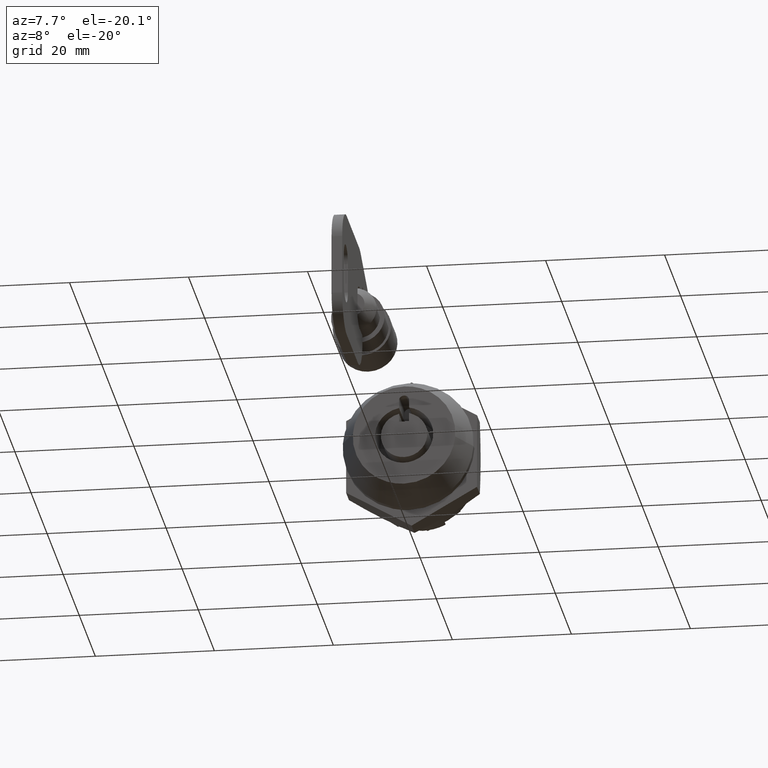
[diagram: clean part render]
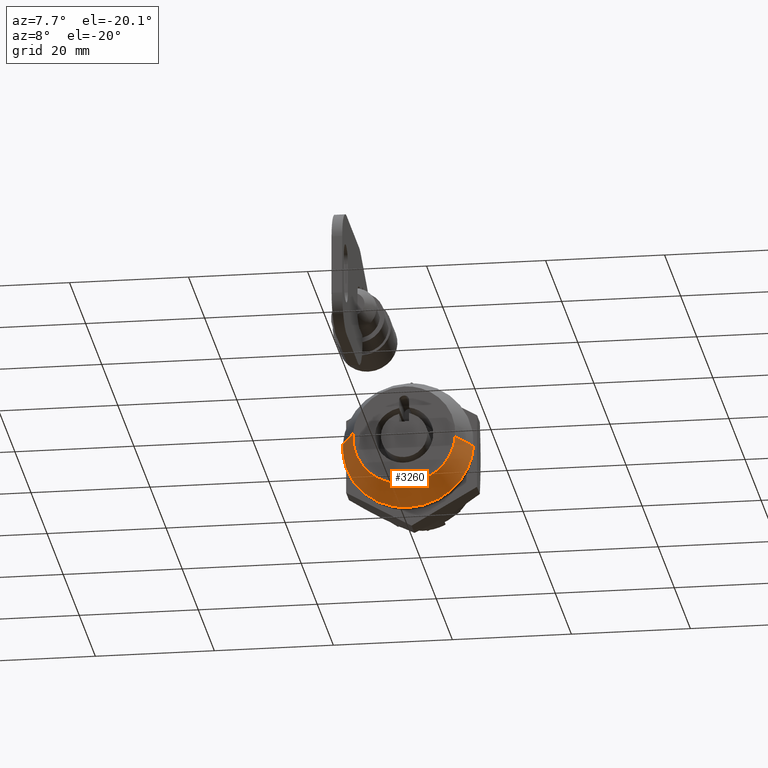
[diagram: same view with one face highlighted and labeled with its STEP entity id]
A machine part, auxiliary view. The second image highlights one B-rep face of the part: STEP entity #3260.
In plain terms, the highlighted face is a freeform B-spline surface patch.
Its self-contained STEP definition (entity closure, byte-faithful):
#2951=CARTESIAN_POINT('',(5.099999000000000,10.928161127785740,-1.255107312205857));
#2952=VERTEX_POINT('',#2951);
#2953=CARTESIAN_POINT('',(5.099999000000000,0.0,-11.0));
#2954=VERTEX_POINT('',#2953);
#2955=CARTESIAN_POINT('',(5.099999000000000,10.928161127785742,-1.255107312205857));
#2956=CARTESIAN_POINT('',(5.099999000000000,9.808953062796213,-11.0));
#2957=CARTESIAN_POINT('',(5.099999000000000,0.0,-11.0));
#2965=(BOUNDED_CURVE()B_SPLINE_CURVE(2,(#2955,#2956,#2957),.UNSPECIFIED.,.F.,.U.)B_SPLINE_CURVE_WITH_KNOTS((3,3),(0.269767755878526,0.500000000000000),.UNSPECIFIED.)CURVE()GEOMETRIC_REPRESENTATION_ITEM()RATIONAL_B_SPLINE_CURVE((0.957343736456882,0.730266147778468,1.0))REPRESENTATION_ITEM(''));
#2966=EDGE_CURVE('',#2952,#2954,#2965,.T.);
#3005=CARTESIAN_POINT('',(5.099999000000000,-10.979482782621821,-0.671533935189413));
#3006=VERTEX_POINT('',#3005);
#3012=CARTESIAN_POINT('',(5.099999000000000,0.0,-11.0));
#3013=CARTESIAN_POINT('',(5.099999000000000,-10.347766735673725,-11.0));
#3014=CARTESIAN_POINT('',(5.099999000000001,-10.979482782621828,-0.671533935189412));
#3022=(BOUNDED_CURVE()B_SPLINE_CURVE(2,(#3012,#3013,#3014),.UNSPECIFIED.,.F.,.U.)B_SPLINE_CURVE_WITH_KNOTS((3,3),(0.500000000000000,0.739332962237160),.UNSPECIFIED.)CURVE()GEOMETRIC_REPRESENTATION_ITEM()RATIONAL_B_SPLINE_CURVE((1.0,0.719603993288799,0.976072041662896))REPRESENTATION_ITEM(''));
#3023=EDGE_CURVE('',#2954,#3006,#3022,.T.);
#3050=CARTESIAN_POINT('',(5.099999000032619,10.966090671065761,0.863050053183593));
#3051=VERTEX_POINT('',#3050);
#3052=CARTESIAN_POINT('',(5.099999000032619,10.966090671065754,0.863050053183593));
#3053=CARTESIAN_POINT('',(5.099999000000000,11.000000000000005,0.432191177261282));
#3054=CARTESIAN_POINT('',(5.099999000000000,11.0,0.0));
#3055=CARTESIAN_POINT('',(5.099999000000000,11.000000000000002,-0.629609585340714));
#3056=CARTESIAN_POINT('',(5.099999000000000,10.928161127785748,-1.255107312205857));
#3064=(BOUNDED_CURVE()B_SPLINE_CURVE(2,(#3052,#3053,#3054,#3055,#3056),.UNSPECIFIED.,.F.,.U.)B_SPLINE_CURVE_WITH_KNOTS((3,2,3),(0.236331300627261,0.250000000000000,0.269767755878526),.UNSPECIFIED.)CURVE()GEOMETRIC_REPRESENTATION_ITEM()RATIONAL_B_SPLINE_CURVE((0.969723356160326,0.983986122574900,1.0,0.976840633408080,0.957343736456883))REPRESENTATION_ITEM(''));
#3065=EDGE_CURVE('',#3051,#2952,#3064,.T.);
#3153=CARTESIAN_POINT('',(7.077075E-012,8.595216883393791,0.676458239289243));
#3154=VERTEX_POINT('',#3153);
#3155=CARTESIAN_POINT('',(7.077075E-012,8.595216883393791,0.676458239289243));
#3156=CARTESIAN_POINT('',(5.099999000032619,10.966090671065761,0.863050053183593));
#3157=QUASI_UNIFORM_CURVE('',1,(#3155,#3156),.UNSPECIFIED.,.F.,.U.);
#3158=EDGE_CURVE('',#3154,#3051,#3157,.T.);
#3175=CARTESIAN_POINT('',(7.076485E-012,-8.595216883393789,-0.676458239289243));
#3176=VERTEX_POINT('',#3175);
#3192=CARTESIAN_POINT('',(7.076485E-012,-8.595216883393789,-0.676458239289243));
#3193=CARTESIAN_POINT('',(5.099999000000000,-10.979482782621821,-0.671533935189413));
#3194=QUASI_UNIFORM_CURVE('',1,(#3192,#3193),.UNSPECIFIED.,.F.,.U.);
#3195=EDGE_CURVE('',#3176,#3006,#3194,.T.);
#3201=CARTESIAN_POINT('',(-0.127499975000000,-8.556953291212011,-0.404858286361987));
#3202=CARTESIAN_POINT('',(-0.127499975000000,-8.546517639686899,-0.537455811195510));
#3203=CARTESIAN_POINT('',(-0.127499975000000,-7.864151594794760,-9.207738482608692));
#3204=CARTESIAN_POINT('',(-0.127499975000000,0.671793443906965,-8.535945038701726));
#3205=CARTESIAN_POINT('',(-0.127499975000000,9.207738482608692,-7.864151594794760));
#3206=CARTESIAN_POINT('',(-0.127499975000000,8.531179474121160,0.732345683151104));
#3207=CARTESIAN_POINT('',(-0.127499975000000,8.526441833244961,0.792543118090556));
#3208=CARTESIAN_POINT('',(5.230686474374999,-11.053983044450348,-0.523001175832846));
#3209=CARTESIAN_POINT('',(5.230686474375003,-11.040502134704724,-0.694292375090782));
#3210=CARTESIAN_POINT('',(5.230686474375001,-10.159012843639774,-11.894675780107359));
#3211=CARTESIAN_POINT('',(5.230686474375001,0.867831468233792,-11.026844311873569));
#3212=CARTESIAN_POINT('',(5.230686474375001,11.894675780107359,-10.159012843639774));
#3213=CARTESIAN_POINT('',(5.230686474375001,11.020688093850859,0.946053634830824));
#3214=CARTESIAN_POINT('',(5.230686474375001,11.014567948030972,1.023817460633578));
#3222=(BOUNDED_SURFACE()B_SPLINE_SURFACE(2,1,((#3201,#3208),(#3202,#3209),(#3203,#3210),(#3204,#3211),(#3205,#3212),(#3206,#3213),(#3207,#3214)),.UNSPECIFIED.,.F.,.F.,.U.)B_SPLINE_SURFACE_WITH_KNOTS((3,1,2,1,3),(2,2),(0.0,0.410561144102383,18.736929076941831,37.063297009781280,37.247691518375817),(0.0,5.912637089924928),.UNSPECIFIED.)GEOMETRIC_REPRESENTATION_ITEM()RATIONAL_B_SPLINE_SURFACE(((1.013123230468423,1.013123230468423),(1.006561615234211,1.006561615234211),(0.707106781186548,0.707106781186548),(1.0,1.0),(0.707106781186548,0.707106781186548),(1.002947005175914,1.002947005175914),(1.005894010351828,1.005894010351828)))REPRESENTATION_ITEM('')SURFACE());
#3223=ORIENTED_EDGE('',*,*,#3065,.T.);
#3224=ORIENTED_EDGE('',*,*,#2966,.T.);
#3225=ORIENTED_EDGE('',*,*,#3023,.T.);
#3226=ORIENTED_EDGE('',*,*,#3195,.F.);
#3227=CARTESIAN_POINT('',(0.0,0.0,-8.621794999999890));
#3228=VERTEX_POINT('',#3227);
#3229=CARTESIAN_POINT('',(0.0,0.0,-8.621794999999890));
#3230=CARTESIAN_POINT('',(0.0,-7.969905318955199,-8.621794999999890));
#3231=CARTESIAN_POINT('',(7.076485E-012,-8.595216883393789,-0.676458239289243));
#3239=(BOUNDED_CURVE()B_SPLINE_CURVE(2,(#3229,#3230,#3231),.UNSPECIFIED.,.F.,.U.)B_SPLINE_CURVE_WITH_KNOTS((3,3),(0.500000000000000,0.736331300631245),.UNSPECIFIED.)CURVE()GEOMETRIC_REPRESENTATION_ITEM()RATIONAL_B_SPLINE_CURVE((1.0,0.723120658606980,0.969723356168640))REPRESENTATION_ITEM(''));
#3240=EDGE_CURVE('',#3228,#3176,#3239,.T.);
#3241=ORIENTED_EDGE('',*,*,#3240,.F.);
#3242=CARTESIAN_POINT('',(7.077075E-012,8.595216883393791,0.676458239289243));
#3243=CARTESIAN_POINT('',(0.0,8.621794999999890,0.338751248186499));
#3244=CARTESIAN_POINT('',(0.0,8.621794999999890,0.0));
#3245=CARTESIAN_POINT('',(0.0,8.621794999999890,-8.621794999999890));
#3246=CARTESIAN_POINT('',(0.0,0.0,-8.621794999999890));
#3254=(BOUNDED_CURVE()B_SPLINE_CURVE(2,(#3242,#3243,#3244,#3245,#3246),.UNSPECIFIED.,.F.,.U.)B_SPLINE_CURVE_WITH_KNOTS((3,2,3),(0.236331300631246,0.250000000000000,0.500000000000000),.UNSPECIFIED.)CURVE()GEOMETRIC_REPRESENTATION_ITEM()RATIONAL_B_SPLINE_CURVE((0.969723356168641,0.983986122579569,1.0,0.707106781186547,1.0))REPRESENTATION_ITEM(''));
#3255=EDGE_CURVE('',#3154,#3228,#3254,.T.);
#3256=ORIENTED_EDGE('',*,*,#3255,.F.);
#3257=ORIENTED_EDGE('',*,*,#3158,.T.);
#3258=EDGE_LOOP('',(#3223,#3224,#3225,#3226,#3241,#3256,#3257));
#3259=FACE_OUTER_BOUND('',#3258,.T.);
#3260=ADVANCED_FACE('',(#3259),#3222,.T.);